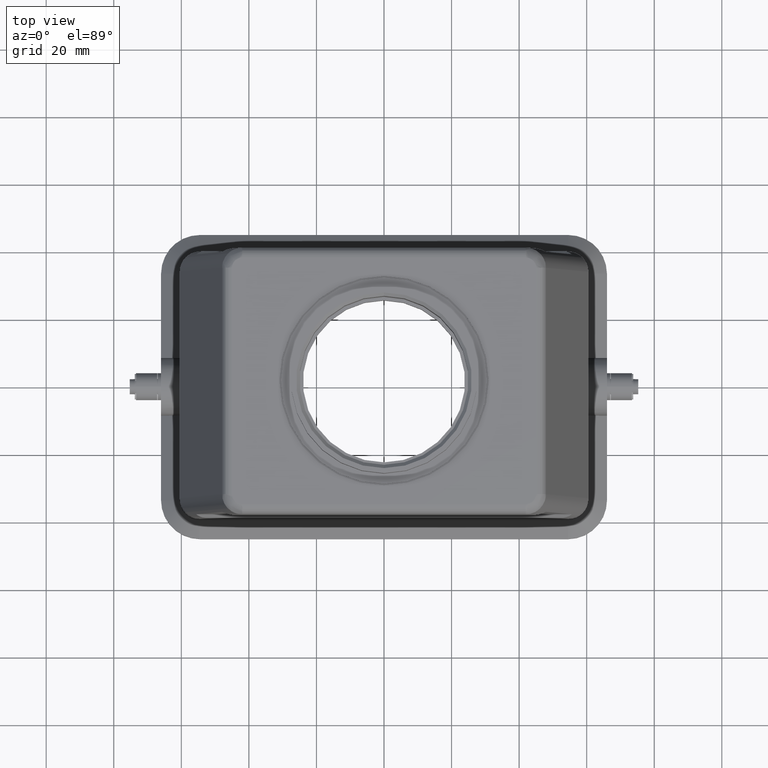
[diagram: clean part render]
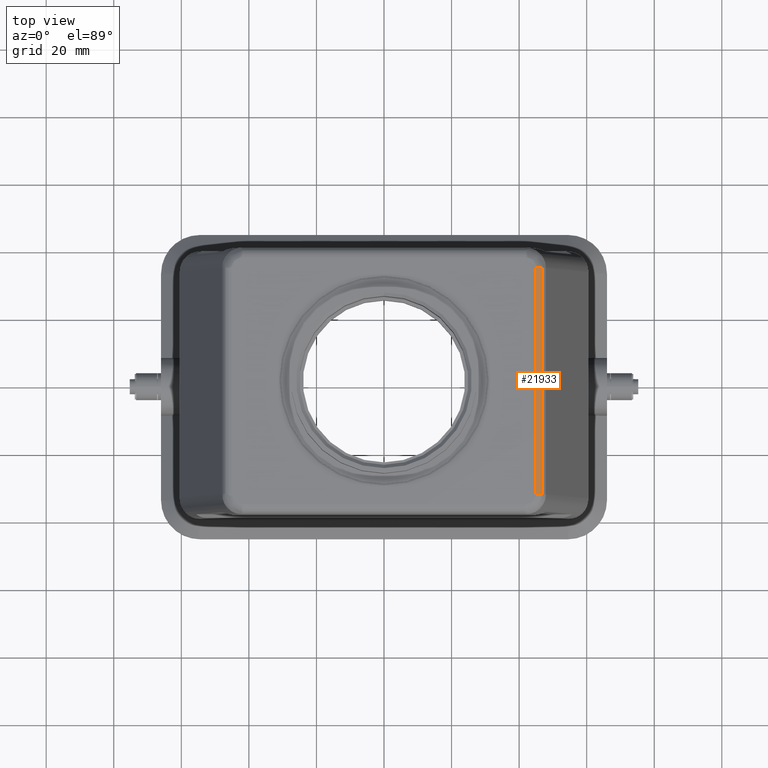
[diagram: same view with one face highlighted and labeled with its STEP entity id]
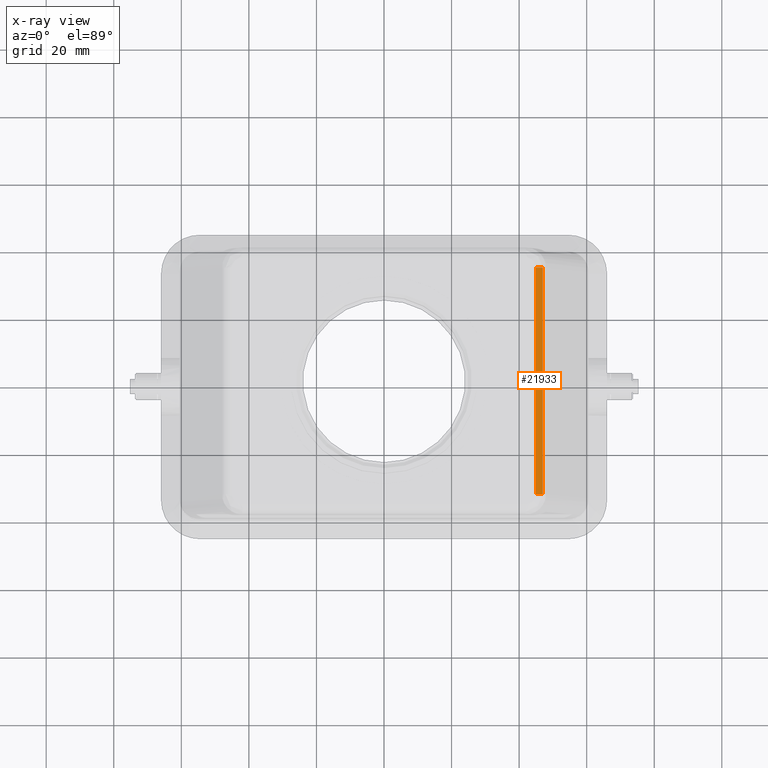
[diagram: x-ray of the same camera — body ghosted, the highlighted face saturated]
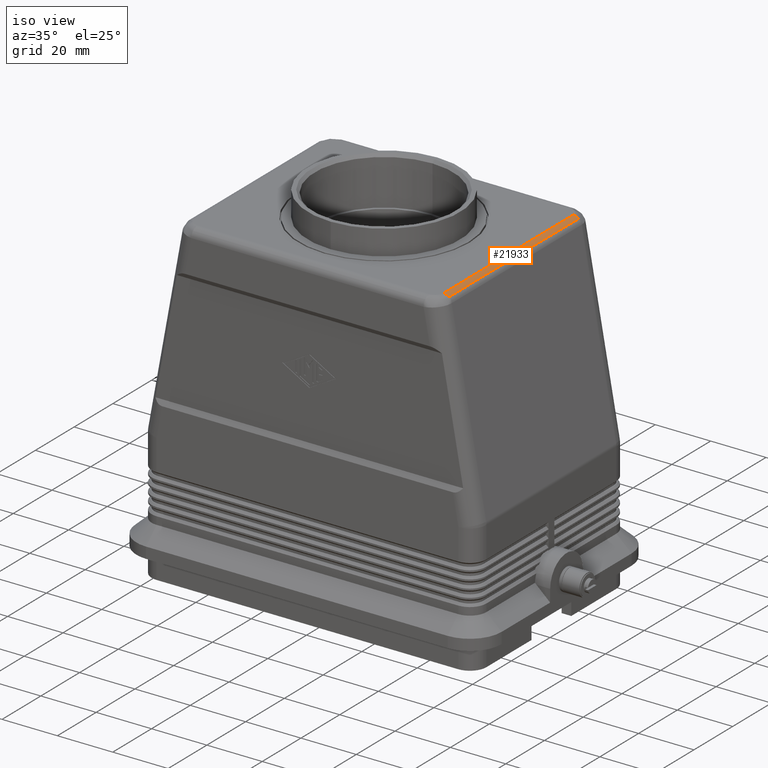
[diagram: same view with one face highlighted and labeled with its STEP entity id]
A machine part, top view. The second image highlights one B-rep face of the part: STEP entity #21933.
The next image is the same camera in x-ray: the body ghosted, the highlighted face saturated — about 0% of this face is hidden behind the body in this view.
A second angle (iso view) of the same face is appended — the face is thin or edge-on in the first view.
In plain terms, the highlighted cylindrical surface (edge-blend (fillet) strip) has radius 3 mm, axis along (0, 1, 0).
Its self-contained STEP definition (entity closure, byte-faithful):
#629=CARTESIAN_POINT('',(46.920237589225643,-33.500000000000007,117.304445727956410));
#630=VERTEX_POINT('',#629);
#631=CARTESIAN_POINT('',(46.920237589225636,33.500000000000007,117.304445727956390));
#632=VERTEX_POINT('',#631);
#633=CARTESIAN_POINT('',(46.920237589225643,-33.500000000000007,117.304445727956410));
#634=DIRECTION('',(0.0,1.0,0.0));
#635=VECTOR('',#634,67.000000000000014);
#636=LINE('',#633,#635);
#637=EDGE_CURVE('',#630,#632,#636,.T.);
#21901=CARTESIAN_POINT('',(44.999422687444749,0.0,115.0));
#21902=DIRECTION('',(0.0,1.0,0.0));
#21903=DIRECTION('',(0.640271633926963,0.0,0.768148575985465));
#21904=AXIS2_PLACEMENT_3D('',#21901,#21902,#21903);
#21905=CYLINDRICAL_SURFACE('',#21904,3.000000000000000);
#21906=ORIENTED_EDGE('',*,*,#637,.T.);
#21907=CARTESIAN_POINT('',(44.999422687444749,33.500000000000007,118.0));
#21908=VERTEX_POINT('',#21907);
#21909=CARTESIAN_POINT('',(44.999422687444749,33.500000000000007,115.0));
#21910=DIRECTION('',(0.0,-1.000000000000000,0.0));
#21911=DIRECTION('',(0.983647487689765,0.0,0.180104469577002));
#21912=AXIS2_PLACEMENT_3D('',#21909,#21910,#21911);
#21913=CIRCLE('',#21912,2.999999999999997);
#21914=EDGE_CURVE('',#632,#21908,#21913,.T.);
#21915=ORIENTED_EDGE('',*,*,#21914,.T.);
#21916=CARTESIAN_POINT('',(44.999422687444749,-33.500000000000007,118.0));
#21917=VERTEX_POINT('',#21916);
#21918=CARTESIAN_POINT('',(44.999422687444749,33.500000000000007,118.0));
#21919=DIRECTION('',(0.0,-1.0,0.0));
#21920=VECTOR('',#21919,67.000000000000014);
#21921=LINE('',#21918,#21920);
#21922=EDGE_CURVE('',#21908,#21917,#21921,.T.);
#21923=ORIENTED_EDGE('',*,*,#21922,.T.);
#21924=CARTESIAN_POINT('',(44.999422687444749,-33.500000000000007,115.0));
#21925=DIRECTION('',(0.0,1.0,0.0));
#21926=DIRECTION('',(0.0,0.0,1.0));
#21927=AXIS2_PLACEMENT_3D('',#21924,#21925,#21926);
#21928=CIRCLE('',#21927,3.000000000000007);
#21929=EDGE_CURVE('',#21917,#630,#21928,.T.);
#21930=ORIENTED_EDGE('',*,*,#21929,.T.);
#21931=EDGE_LOOP('',(#21906,#21915,#21923,#21930));
#21932=FACE_OUTER_BOUND('',#21931,.T.);
#21933=ADVANCED_FACE('',(#21932),#21905,.T.);